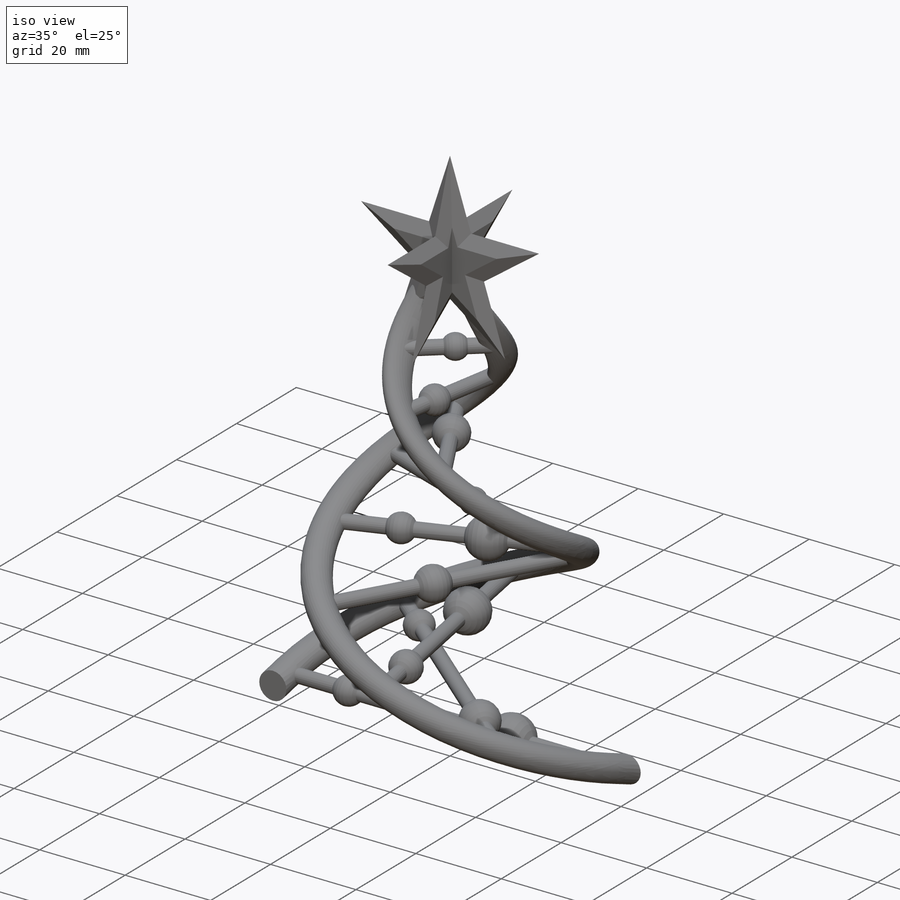
[diagram: iso view]
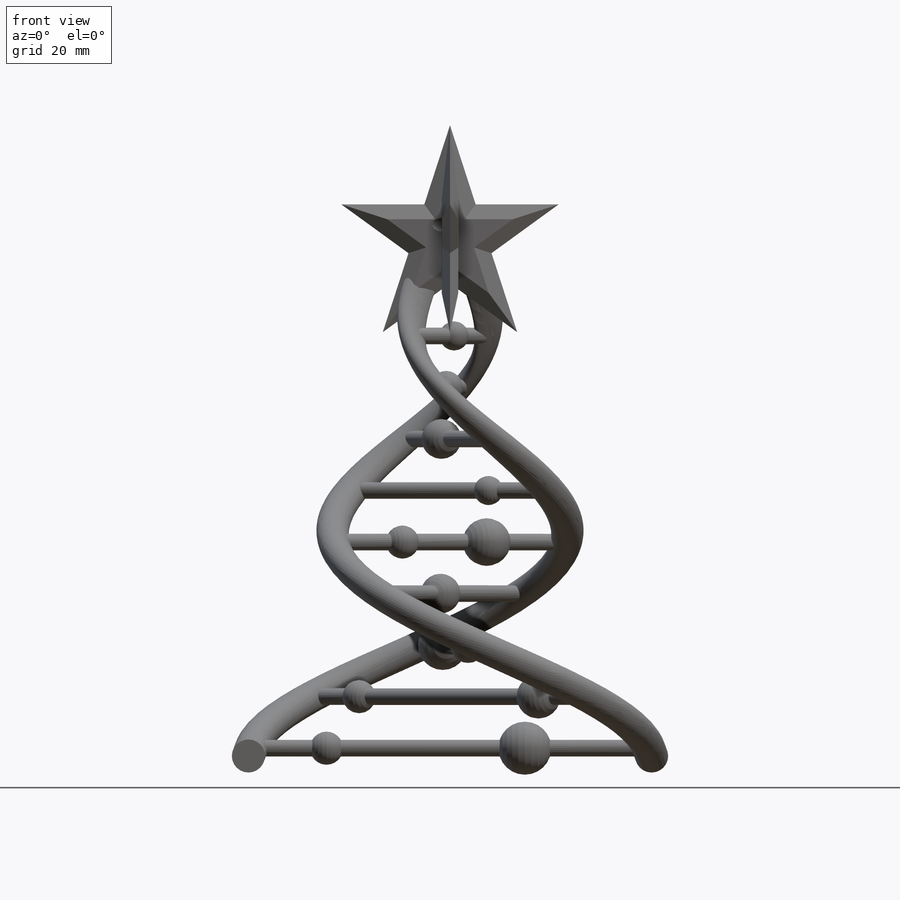
[diagram: front view]
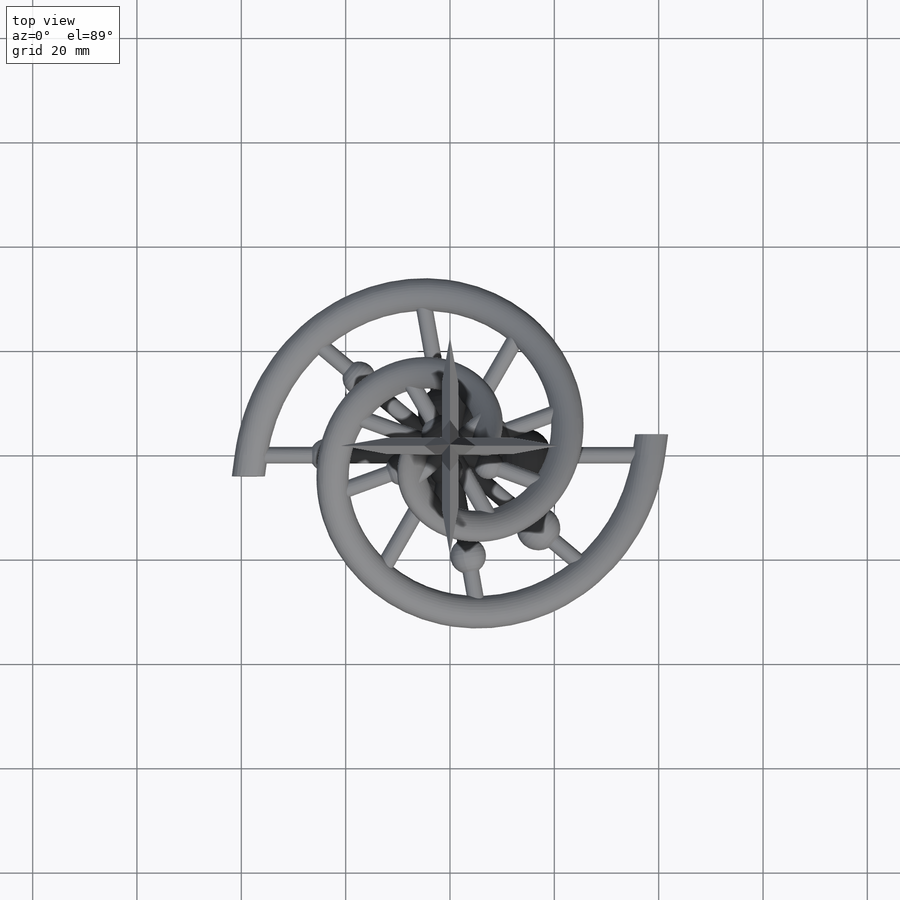
[diagram: top view]
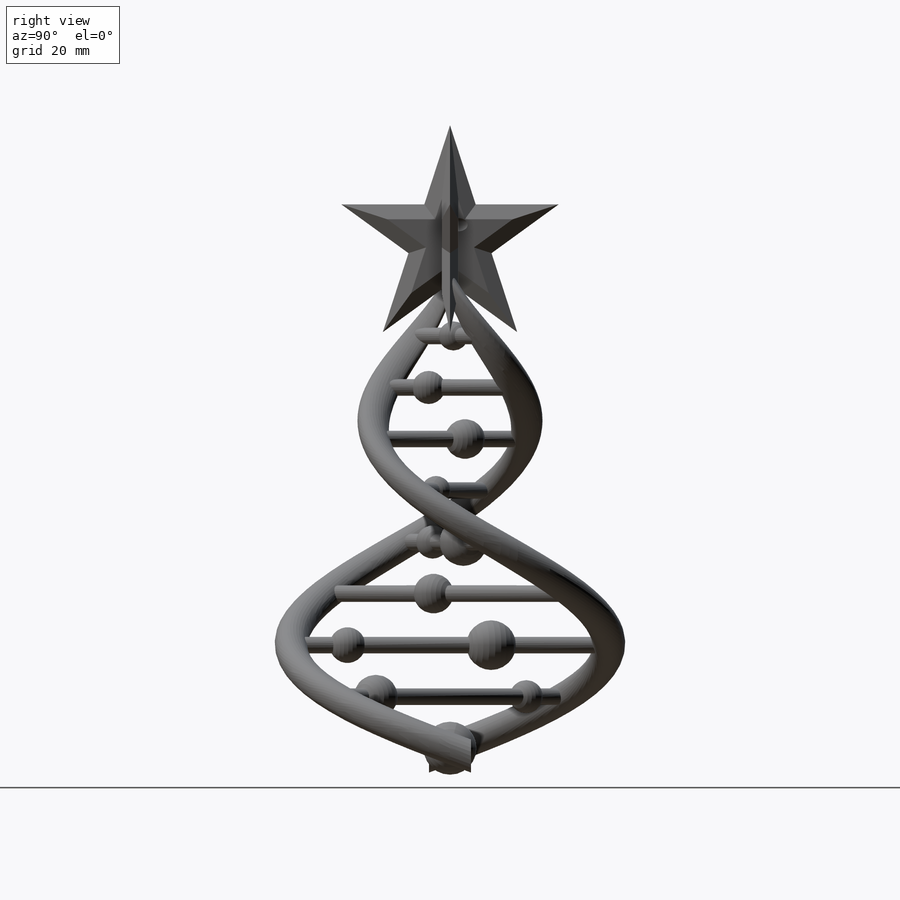
[diagram: right view]
SOLIDWORKS PART (.sldprt)
format: sldprt  version: not decoded by parser v0  size: 1,207,808 bytes
history: native  units: mm
features: sketch x24, revolve x9, plane x9, sweep x3, helix x3, pattern_circular x3, extrude x2, cut_extrude x2, material x1, surface_op x1 + 1 further entry (+13 scaffold rows collapsed)
feature tree (71):
  scaffold x13  (default folders/planes/origin — collapsed)
  material  "Material <not specified>"
  sketch  "Sketch9"  dims[D1=~7.884197mm]
  sketch  "Sketch10"  dims[D1=3.175mm]
  sweep  "Sweep3"
  sketch  "Sketch13"  dims[D1=0.0mm]
  extrude  "Boss-Extrude1"  Depth=38.1mm
  sketch  "Sketch11"
  cut_extrude  "Cut-Extrude3"  Depth=12.7mm
  sketch  "Sketch12"
  helix  "Helix/Spiral2"  Pitch=88.9mm
  sketch  "Sketch14"
  helix  "Helix/Spiral3"  Pitch=88.9mm
  sketch  "3DSketch1"
  surface_op  "Surface-Extrude1"
  sketch  "Sketch15"
  helix  "Helix/Spiral4"  Pitch=88.9mm
  sketch  "3DSketch2"  dims[D1=6.35mm D2=6.35mm]
  "SurfaceCut5"
  sketch  "Sketch16"  dims[D1=~3.328745mm]
  sweep  "Sweep4"
  pattern_circular  "CirPattern3"  Count=2 Angle=360deg
  sketch  "3DSketch3"
  sketch  "Sketch17"
  sweep  "Sweep5"
  pattern_circular  "CirPattern4"  Count=2 Angle=360deg
  sketch  "Sketch18"  dims[D1=5.08mm]
  revolve  "Revolve3"  Angle=360deg
  sketch  "Sketch19"  dims[D1=5.08mm]
  plane  "Plane1"
  sketch  "Sketch21"  dims[D1=~3.426511mm D2=4.7625mm]
  revolve  "Revolve4"  Angle=360deg
  plane  "Plane2"
  sketch  "Sketch22"  dims[D1=3.175mm D2=4.572mm]
  revolve  "Revolve5"  Angle=360deg
  sketch  "Sketch23"
  extrude  "Boss-Extrude2"  Depth=3.175mm
  pattern_circular  "CirPattern5"  Count=2 Angle=90deg
  plane  "Plane3"
  sketch  "Sketch26"  dims[D1=3.175mm]
  revolve  "Revolve9"  Angle=360deg
  plane  "Plane4"
  sketch  "Sketch27"  dims[D1=2.794mm]
  revolve  "Revolve10"  Angle=360deg
  plane  "Plane5"
  sketch  "Sketch28"  dims[D1=3.81mm]
  revolve  "Revolve11"  Angle=360deg
  plane  "Plane6"
  sketch  "Sketch29"  dims[D1=3.175mm D2=4.191mm]
  revolve  "Revolve12"  Angle=360deg
  plane  "Plane7"
  sketch  "Sketch30"  dims[D1=3.81mm]
  revolve  "Revolve13"  Angle=360deg
  plane  "Plane8"
  sketch  "Sketch31"  dims[D1=2.794mm]
  revolve  "Revolve14"  Angle=360deg
  plane  "Plane9"
  sketch  "Sketch32"  dims[D1=19.05mm]
  cut_extrude  "Cut-Extrude8"  Depth=19.05mm
decode coverage: 35 of 47 modeling features carry decoded parameters; 1 rows unclassified (native names shown)
note: ~ marks probable driven/reference dimensions
note: suppression state not decoded; provenance and decode notes live in map.json
